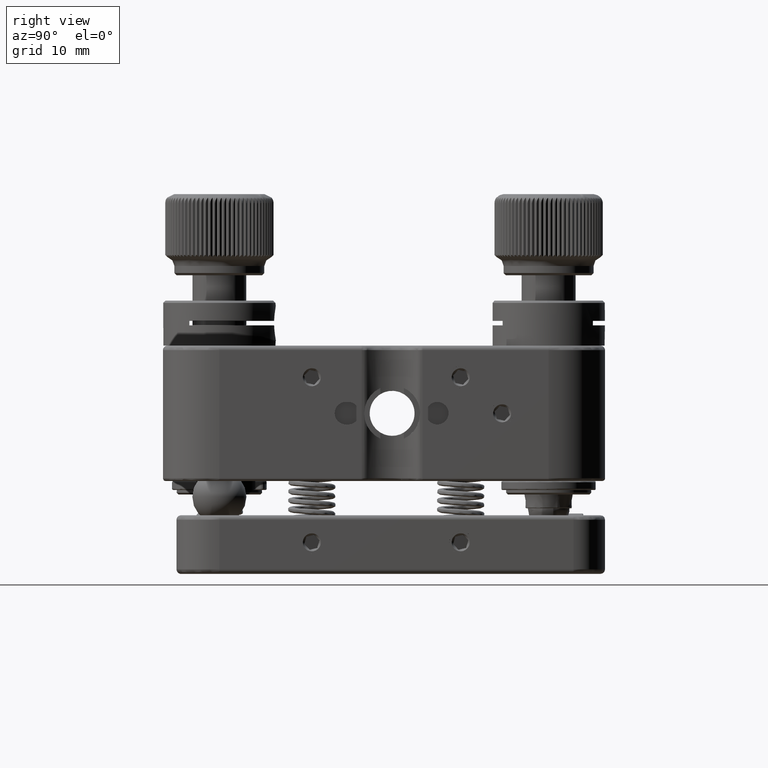
[diagram: clean part render]
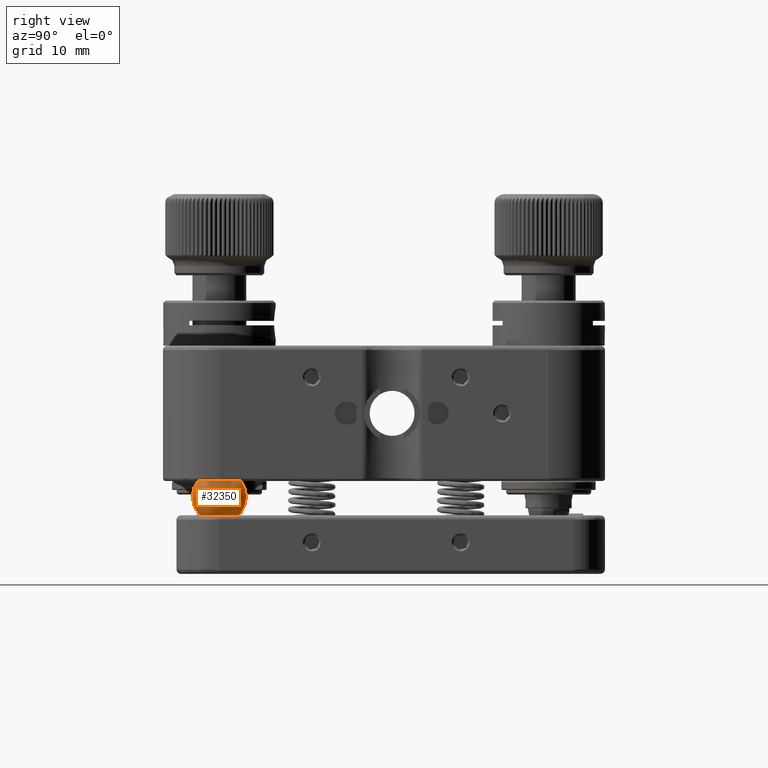
[diagram: same view with one face highlighted and labeled with its STEP entity id]
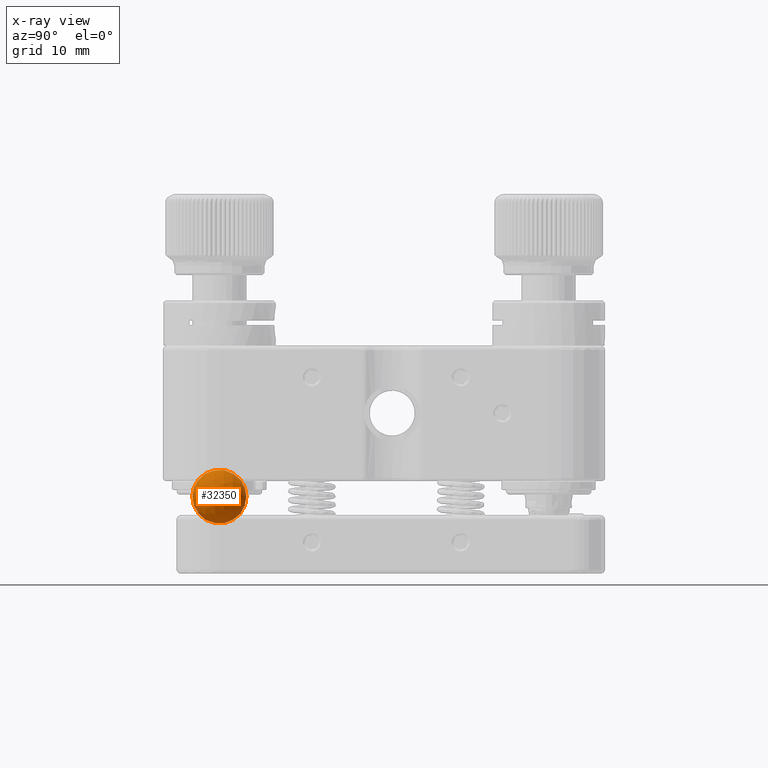
[diagram: x-ray of the same camera — body ghosted, the highlighted face saturated]
A machine part, right view. The second image highlights one B-rep face of the part: STEP entity #32350.
The next image is the same camera in x-ray: the body ghosted, the highlighted face saturated — about 0% of this face is hidden behind the body in this view.
In plain terms, the highlighted spherical surface has radius 3 mm.
Its self-contained STEP definition (entity closure, byte-faithful):
#21040 = DIRECTION ( 'NONE',  ( 0.002347107137642274067, 0.9999972455402487137, 2.891205793294721714E-16 ) ) ;
#32350 = ADVANCED_FACE ( 'NONE', ( ), #52869, .T. ) ;
#38687 = DIRECTION ( 'NONE',  ( -0.9999972455402487137, 0.002347107137642274067, 0.000000000000000000 ) ) ;
#42960 = AXIS2_PLACEMENT_3D ( 'NONE', #43887, #21040, #38687 ) ;
#43887 = CARTESIAN_POINT ( 'NONE',  ( 18.24999999999972289, -18.25000000011929302, -9.242640687119239473 ) ) ;
#52869 = SPHERICAL_SURFACE ( 'NONE', #42960, 2.999999999999999556 ) ;